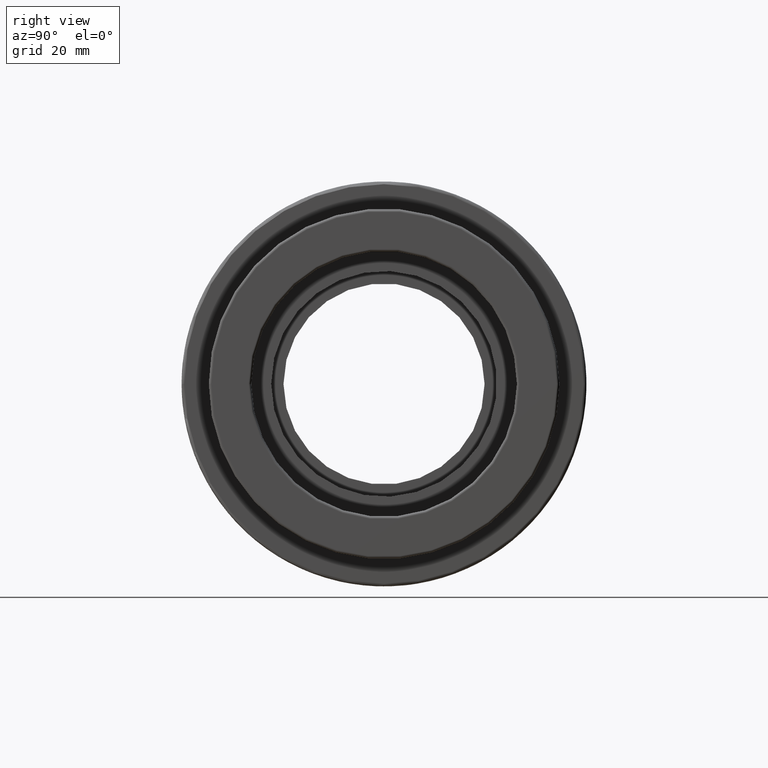
[diagram: clean part render]
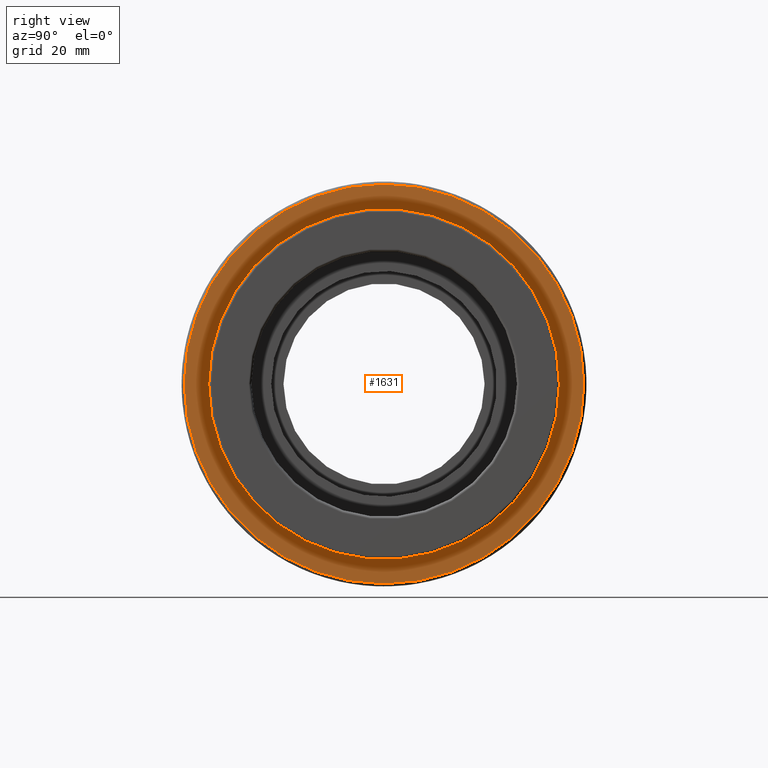
[diagram: same view with one face highlighted and labeled with its STEP entity id]
A machine part, right view. The second image highlights one B-rep face of the part: STEP entity #1631.
In plain terms, the highlighted planar face has unit normal (1, 0, 0).
Its self-contained STEP definition (entity closure, byte-faithful):
#39=FACE_BOUND('',#316,.T.);
#131=CIRCLE('',#1789,47.37);
#132=CIRCLE('',#1791,41.58);
#221=FACE_OUTER_BOUND('',#315,.T.);
#315=EDGE_LOOP('',(#1378));
#316=EDGE_LOOP('',(#1379));
#789=VERTEX_POINT('',#2750);
#790=VERTEX_POINT('',#2753);
#1017=EDGE_CURVE('',#789,#789,#131,.T.);
#1018=EDGE_CURVE('',#790,#790,#132,.T.);
#1378=ORIENTED_EDGE('',*,*,#1017,.F.);
#1379=ORIENTED_EDGE('',*,*,#1018,.T.);
#1551=PLANE('',#1790);
#1631=ADVANCED_FACE('',(#221,#39),#1551,.T.);
#1789=AXIS2_PLACEMENT_3D('',#2751,#2245,#2246);
#1790=AXIS2_PLACEMENT_3D('',#2752,#2247,#2248);
#1791=AXIS2_PLACEMENT_3D('',#2754,#2249,#2250);
#2245=DIRECTION('center_axis',(-1.,-4.89858719658941E-16,0.));
#2246=DIRECTION('ref_axis',(-4.89858719658941E-16,1.,6.12323399573676E-17));
#2247=DIRECTION('center_axis',(1.,4.89858719658941E-16,0.));
#2248=DIRECTION('ref_axis',(0.,0.,-1.));
#2249=DIRECTION('center_axis',(-1.,-4.89858719658941E-16,0.));
#2250=DIRECTION('ref_axis',(0.,0.,1.));
#2750=CARTESIAN_POINT('',(25.5,-47.37,2.90057594378051E-15));
#2751=CARTESIAN_POINT('Origin',(25.5,2.24110364243965E-14,0.));
#2752=CARTESIAN_POINT('Origin',(25.5,-48.,0.));
#2753=CARTESIAN_POINT('',(25.5,-41.58,0.));
#2754=CARTESIAN_POINT('Origin',(25.5,2.24110364243966E-14,0.));